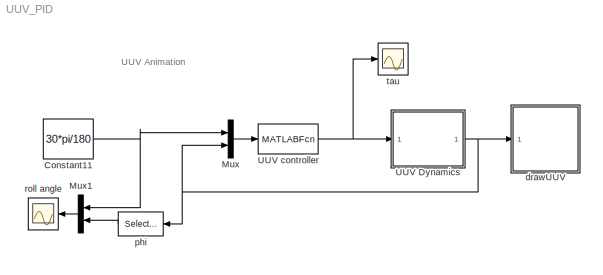
MODEL UUV_PID
KIND model
BLOCK [Constant] Constant11
  SID = 19
  Value = 30*pi/180
BLOCK [Mux] Mux
  DisplayOption = bar
  Inputs = 2
  Ports = [2, 1]
  SID = 40
BLOCK [Mux] Mux1
  DisplayOption = bar
  Inputs = 2
  Ports = [2, 1]
  SID = 41
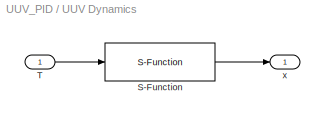
BLOCK [SubSystem] UUV Dynamics
  Ports = [1, 1]
  RequestExecContextInheritance = off
  SID = 11
BLOCK [S-Function] UUV Dynamics/S-Function
  EnableBusSupport = off
  FunctionName = UUV_dynamics
  Parameters = P
  Ports = [1, 1]
  SID = 15
BLOCK [Inport] UUV Dynamics/T
  IconDisplay = Port number
  SID = 12
BLOCK [Outport] UUV Dynamics/x
  IconDisplay = Port number
  SID = 25
BLOCK [MATLABFcn] UUV controller
  MATLABFcn = UUV_roll_ctrl(u,P)
  OutputDimensions = 1
  Ports = [1, 1]
  SID = 39
  SampleTime = P.Ts
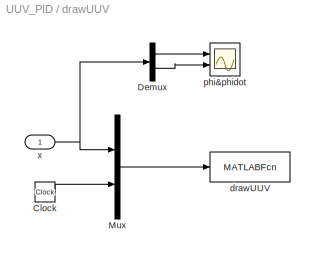
BLOCK [SubSystem] drawUUV
  Ports = [1]
  RequestExecContextInheritance = off
  SID = 4
BLOCK [Clock] drawUUV/Clock
  SID = 6
BLOCK [Demux] drawUUV/Demux
  DisplayOption = bar
  Outputs = 2
  Ports = [1, 2]
  SID = 22
BLOCK [Mux] drawUUV/Mux
  DisplayOption = bar
  Inputs = 2
  Ports = [2, 1]
  SID = 7
BLOCK [MATLABFcn] drawUUV/drawUUV
  MATLABFcn = drawUUV(u,MajorAxis,MinorAxis,C_M)
  OutputDimensions = 0
  Ports = [1]
  SID = 8
  SampleTime = 0.1
BLOCK [Scope] drawUUV/phi&phidot
  DataFormat = StructureWithTime
  Floating = off
  LimitDataPoints = off
  NumInputPorts = 2
  Ports = [2]
  SID = 21
  SampleTime = 0
  ShowLegends = off
  TimeRange = 40
  YMax = 0.8~0.4
  YMin = 0~0
BLOCK [Inport] drawUUV/x
  IconDisplay = Port number
  SID = 26
BLOCK [Selector] phi
  Indices = [1]
  InputPortWidth = 2
  Ports = [1, 1]
  SID = 42
BLOCK [Scope] roll angle
  DataFormat = StructureWithTime
  Floating = off
  LimitDataPoints = off
  NumInputPorts = 1
  Ports = [1]
  SID = 43
  SampleTime = 0
  SaveName = ScopeData2
  ShowLegends = off
  TimeRange = 16
  YMax = 5e-14
  YMin = -1.5e-14
BLOCK [Scope] tau
  DataFormat = StructureWithTime
  Floating = off
  NumInputPorts = 1
  Ports = [1]
  SID = 34
  SampleTime = 0
  SaveName = ScopeData1
  ShowLegends = off
  TimeRange = 40
  YMax = 0
  YMin = -80
ANNOTATION (root): UUV Animation
NET Constant11:1 -> Mux1:1, Mux:1
LINE Mux1:1 -> roll angle:1
LINE Mux:1 -> UUV controller:1
LINE UUV Dynamics/S-Function:1 -> UUV Dynamics/x:1
LINE UUV Dynamics/T:1 -> UUV Dynamics/S-Function:1
NET UUV Dynamics:1 -> Mux:2, drawUUV:1, phi:1
NET UUV controller:1 -> UUV Dynamics:1, tau:1
LINE drawUUV/Clock:1 -> drawUUV/Mux:2
LINE drawUUV/Demux:1 -> drawUUV/phi&phidot:1
LINE drawUUV/Demux:2 -> drawUUV/phi&phidot:2
LINE drawUUV/Mux:1 -> drawUUV/drawUUV:1
NET drawUUV/x:1 -> drawUUV/Demux:1, drawUUV/Mux:1
LINE phi:1 -> Mux1:2
note: NET lines group one-source signal fan-out (src -> all destinations, sorted); 1:1 wires keep LINE
